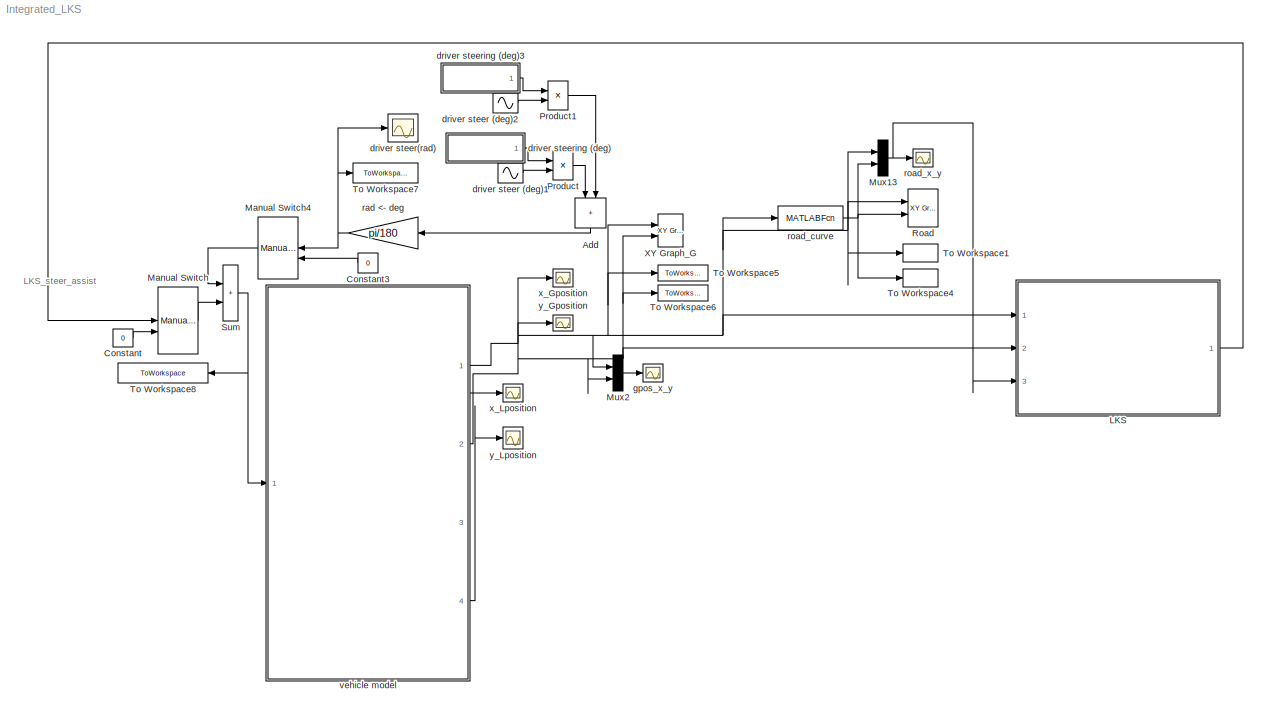
MODEL Integrated_LKS
KIND model
BLOCK [Sum] Add
  IconShape = rectangular
  NameLocation = left
  Ports = [2, 1]
  SID = 369
BLOCK [Constant] Constant
  SID = 16
  Value = 0
BLOCK [Constant] Constant3
  SID = 19
  Value = 0
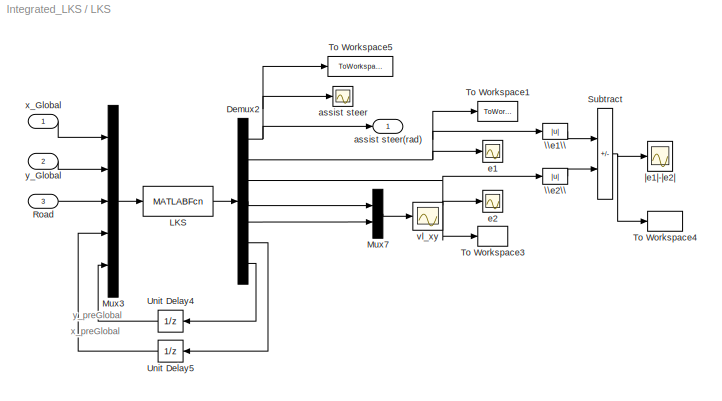
BLOCK [SubSystem] LKS
  Ports = [3, 1]
  RequestExecContextInheritance = off
  SID = 395
BLOCK [Demux] LKS/Demux2
  Outputs = 7
  Ports = [1, 7]
  SID = 333
BLOCK [MATLABFcn] LKS/LKS
  MATLABFcn = lks
  Ports = [1, 1]
  SID = 332
BLOCK [Mux] LKS/Mux3
  DisplayOption = bar
  Inputs = 5
  Ports = [5, 1]
  SID = 319
BLOCK [Mux] LKS/Mux7
  DisplayOption = bar
  Inputs = 2
  Ports = [2, 1]
  SID = 340
BLOCK [Inport] LKS/Road
  Port = 3
  SID = 398
BLOCK [Sum] LKS/Subtract
  IconShape = rectangular
  Inputs = +-
  Ports = [2, 1]
  SID = 405
BLOCK [ToWorkspace] LKS/To Workspace1
  MaxDataPoints = inf
  Ports = [1]
  SID = 466
  SampleTime = -1
  VariableName = e1
BLOCK [ToWorkspace] LKS/To Workspace3
  MaxDataPoints = inf
  Ports = [1]
  SID = 467
  SampleTime = -1
  VariableName = e2
BLOCK [ToWorkspace] LKS/To Workspace4
  MaxDataPoints = inf
  Ports = [1]
  SID = 468
  SampleTime = -1
  VariableName = e1_e2
BLOCK [ToWorkspace] LKS/To Workspace5
  MaxDataPoints = inf
  Ports = [1]
  SID = 465
  SampleTime = -1
  VariableName = assist_steer
BLOCK [UnitDelay] LKS/Unit Delay4
  HasFrameUpgradeWarning = on
  NameLocation = top
  SID = 344
  SampleTime = -1
BLOCK [UnitDelay] LKS/Unit Delay5
  HasFrameUpgradeWarning = on
  NameLocation = top
  SID = 345
  SampleTime = -1
BLOCK [Abs] LKS/\\e1\\
  SID = 406
  SaturateOnIntegerOverflow = off
BLOCK [Abs] LKS/\\e2\\
  SID = 408
  SaturateOnIntegerOverflow = off
BLOCK [Scope] LKS/assist steer
  Floating = off
  NumInputPorts = 1
  Ports = [1]
  SID = 348
  ScopeSpecificationString = Simulink.scopes.TimeScopeBlockCfg('CurrentConfiguration', extmgr.ConfigurationSet(extmgr.Configuration('Core','General UI',true),extmgr.Configuration('Core','Source UI',true),extmgr.Configuration('Sources','WiredSimulink',true,'DataLoggingVariableName','ScopeData6','DataLoggingSaveFormat','StructureWithTime','DataLoggingDecimation','1','DataLoggingDecimateData',true),extmgr.Configuration('Visuals'...<+1764ch>
BLOCK [Outport] LKS/assist steer(rad)
  SID = 399
BLOCK [Scope] LKS/e1
  Floating = off
  NumInputPorts = 1
  Ports = [1]
  SID = 337
  ScopeSpecificationString = Simulink.scopes.TimeScopeBlockCfg('CurrentConfiguration', extmgr.ConfigurationSet(extmgr.Configuration('Core','General UI',true),extmgr.Configuration('Core','Source UI',true),extmgr.Configuration('Sources','WiredSimulink',true,'DataLoggingVariableName','ScopeData2','DataLoggingSaveFormat','StructureWithTime','DataLoggingDecimation','1','DataLoggingDecimateData',true),extmgr.Configuration('Visuals'...<+1742ch>
BLOCK [Scope] LKS/e2
  Floating = off
  NumInputPorts = 1
  Ports = [1]
  SID = 338
  ScopeSpecificationString = Simulink.scopes.TimeScopeBlockCfg('CurrentConfiguration', extmgr.ConfigurationSet(extmgr.Configuration('Core','General UI',true),extmgr.Configuration('Core','Source UI',true),extmgr.Configuration('Sources','WiredSimulink',true,'DataLoggingVariableName','ScopeData3','DataLoggingSaveFormat','StructureWithTime','DataLoggingDecimation','1','DataLoggingDecimateData',true),extmgr.Configuration('Visuals'...<+1742ch>
BLOCK [Scope] LKS/vl_xy
  Floating = off
  NumInputPorts = 1
  Ports = [1]
  SID = 339
  ScopeSpecificationString = Simulink.scopes.TimeScopeBlockCfg('CurrentConfiguration', extmgr.ConfigurationSet(extmgr.Configuration('Core','General UI',true),extmgr.Configuration('Core','Source UI',true),extmgr.Configuration('Sources','WiredSimulink',true,'DataLoggingVariableName','ScopeData5','DataLoggingSaveFormat','StructureWithTime','DataLoggingDecimation','1','DataLoggingDecimateData',true),extmgr.Configuration('Visuals'...<+1764ch>
BLOCK [Inport] LKS/x_Global
  SID = 396
BLOCK [Inport] LKS/y_Global
  Port = 2
  SID = 397
BLOCK [Scope] LKS/|e1|-|e2|
  Floating = off
  NumInputPorts = 1
  Ports = [1]
  SID = 409
  ScopeSpecificationString = Simulink.scopes.TimeScopeBlockCfg('CurrentConfiguration', extmgr.ConfigurationSet(extmgr.Configuration('Core','General UI',true),extmgr.Configuration('Core','Source UI',true),extmgr.Configuration('Sources','WiredSimulink',true,'DataLoggingVariableName','ScopeData9','DataLoggingSaveFormat','StructureWithTime','DataLoggingLimitDataPoints',true,'DataLoggingDecimation','1','DataLoggingDecimateData',tr...<+1708ch>
BLOCK [ManualSwitch] Manual Switch
  SID = 25
BLOCK [ManualSwitch] Manual Switch4
  NameLocation = top
  SID = 29
BLOCK [Mux] Mux13
  DisplayOption = bar
  Inputs = 2
  Ports = [2, 1]
  SID = 325
BLOCK [Mux] Mux2
  DisplayOption = bar
  Inputs = 2
  Ports = [2, 1]
  SID = 494
BLOCK [Product] Product
  Ports = [2, 1]
  RndMeth = Zero
  SID = 352
BLOCK [Product] Product1
  Ports = [2, 1]
  RndMeth = Zero
  SID = 487
BLOCK [Reference] Road  REF=simulink/Sinks/XY Graph
  Ports = [2]
  RTWMemSecDataConstants = Inherit from model
  RTWMemSecDataInternal = Inherit from model
  RTWMemSecDataParameters = Inherit from model
  RTWMemSecFuncExecute = Inherit from model
  RTWMemSecFuncInitTerm = Inherit from model
  SID = 322
  SourceBlock = simulink/Sinks/XY Graph
  SourceProductBaseCode = SL
  SourceType = XY scope.
  st = 0
  xmax = 500
  xmin = 0
  ymax = 1
  ymin = -100
BLOCK [Sum] Sum
  IconShape = rectangular
  Inputs = |++
  Ports = [2, 1]
  SID = 41
  SaturateOnIntegerOverflow = on
BLOCK [ToWorkspace] To Workspace1
  MaxDataPoints = inf
  Ports = [1]
  SID = 457
  SampleTime = -1
  VariableName = Roadx
BLOCK [ToWorkspace] To Workspace4
  MaxDataPoints = inf
  Ports = [1]
  SID = 458
  SampleTime = -1
  VariableName = Roady
BLOCK [ToWorkspace] To Workspace5
  MaxDataPoints = inf
  Ports = [1]
  SID = 454
  SampleTime = -1
  VariableName = xgp_with
BLOCK [ToWorkspace] To Workspace6
  MaxDataPoints = inf
  Ports = [1]
  SID = 456
  SampleTime = -1
  VariableName = ygp_with
BLOCK [ToWorkspace] To Workspace7
  MaxDataPoints = inf
  Ports = [1]
  SID = 469
  SampleTime = -1
  VariableName = driver_steer
BLOCK [ToWorkspace] To Workspace8
  MaxDataPoints = inf
  NameLocation = top
  Ports = [1]
  SID = 470
  SampleTime = -1
  VariableName = command_steer
BLOCK [Reference] XY Graph_G  REF=simulink/Sinks/XY Graph
  Ports = [2]
  RTWMemSecDataConstants = Inherit from model
  RTWMemSecDataInternal = Inherit from model
  RTWMemSecDataParameters = Inherit from model
  RTWMemSecFuncExecute = Inherit from model
  RTWMemSecFuncInitTerm = Inherit from model
  SID = 327
  SourceBlock = simulink/Sinks/XY Graph
  SourceProductBaseCode = SL
  SourceType = XY scope.
  st = 0
  xmax = 500
  xmin = 0
  ymax = 1
  ymin = -100
BLOCK [Sin] driver steer (deg)1
  Amplitude = 0.8
  Frequency = 0.34907
  Phase = 0.34898
  Ports = [0, 1]
  SID = 368
  SampleTime = 0
BLOCK [Sin] driver steer (deg)2
  Amplitude = 0.8
  Frequency = 0.165347
  Phase = 2.64
  Ports = [0, 1]
  SID = 482
  SampleTime = 0
BLOCK [Scope] driver steer(rad)
  Floating = off
  NumInputPorts = 1
  Ports = [1]
  SID = 180
  ScopeSpecificationString = Simulink.scopes.TimeScopeBlockCfg('CurrentConfiguration', extmgr.ConfigurationSet(extmgr.Configuration('Core','General UI',true),extmgr.Configuration('Core','Source UI',true),extmgr.Configuration('Sources','WiredSimulink',true,'DataLoggingVariableName','ScopeData10','DataLoggingSaveFormat','StructureWithTime','DataLoggingDecimation','1','DataLoggingDecimateData',true),extmgr.Configuration('Visuals...<+1768ch>
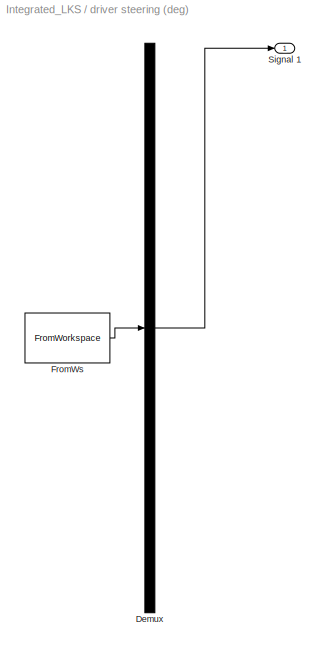
BLOCK [SubSystem] driver steering (deg)
  ClipboardFcn = sigbuilder_block('clipboard');
  CloseFcn = sigbuilder_block('close');
  ContinueFcn = sigbuilder_block('continue')
  CopyFcn = sigbuilder_block('copy');
  DeleteFcn = sigbuilder_block('delete');
  LoadFcn = sigbuilder_block('load');
  MaskHideContents = on
  ModelCloseFcn = sigbuilder_block('modelClose');
  NameChangeFcn = sigbuilder_block('namechange');
  NameLocation = top
  OpenFcn = sigbuilder_block('open',[-717 159.75 558.75 274.5 ]);
  PauseFcn = sigbuilder_block('pause')
  Ports = [0, 1]
  PreSaveFcn = sigbuilder_block('preSave');
  RequestExecContextInheritance = off
  SID = 364
  StartFcn = sigbuilder_block('start');
  StopFcn = sigbuilder_block('stop');
  Tag = STV Subsys
BLOCK [Demux] driver steering (deg)/Demux
  DisplayOption = none
  Outputs = 1
  Ports = [1, 1]
  SID = 365
  Tag = STV Demux
BLOCK [FromWorkspace] driver steering (deg)/FromWs
  SID = 366
  SigBuilderData = DataTag0
  Tag = STV FromWs
  VariableName = tuvar
  VnvData = DataTag1
BLOCK [Outport] driver steering (deg)/Signal 1
  SID = 367
  Tag = STV Outport
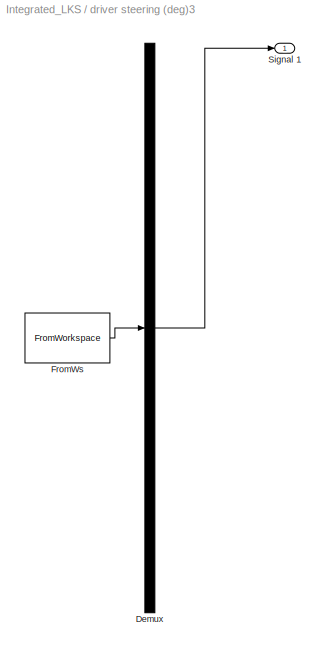
BLOCK [SubSystem] driver steering (deg)3
  ClipboardFcn = sigbuilder_block('clipboard');
  CloseFcn = sigbuilder_block('close');
  ContinueFcn = sigbuilder_block('continue')
  CopyFcn = sigbuilder_block('copy');
  DeleteFcn = sigbuilder_block('delete');
  LoadFcn = sigbuilder_block('load');
  MaskHideContents = on
  ModelCloseFcn = sigbuilder_block('modelClose');
  NameChangeFcn = sigbuilder_block('namechange');
  NameLocation = top
  OpenFcn = sigbuilder_block('open',[-723.75 76.5 558.75 274.5 ]);
  PauseFcn = sigbuilder_block('pause')
  Ports = [0, 1]
  PreSaveFcn = sigbuilder_block('preSave');
  RequestExecContextInheritance = off
  SID = 483
  StartFcn = sigbuilder_block('start');
  StopFcn = sigbuilder_block('stop');
  Tag = STV Subsys
BLOCK [Demux] driver steering (deg)3/Demux
  DisplayOption = none
  Outputs = 1
  Ports = [1, 1]
  SID = 484
  Tag = STV Demux
BLOCK [FromWorkspace] driver steering (deg)3/FromWs
  SID = 485
  SigBuilderData = DataTag2
  Tag = STV FromWs
  VariableName = tuvar
  VnvData = DataTag3
BLOCK [Outport] driver steering (deg)3/Signal 1
  SID = 486
  Tag = STV Outport
BLOCK [Scope] gpos_x_y
  Floating = off
  NumInputPorts = 1
  Ports = [1]
  SID = 495
  ScopeSpecificationString = Simulink.scopes.TimeScopeBlockCfg('CurrentConfiguration', extmgr.ConfigurationSet(extmgr.Configuration('Core','General UI',true),extmgr.Configuration('Core','Source UI',true),extmgr.Configuration('Sources','WiredSimulink',true,'DataLoggingVariableName','ScopeData22','DataLoggingSaveFormat','StructureWithTime','DataLoggingDecimation','1','DataLoggingDecimateData',true),extmgr.Configuration('Visuals...<+1778ch>
BLOCK [Gain] rad <- deg
  Gain = pi/180
  NameLocation = top
  OutDataTypeStr = Inherit: Same as input
  ParamDataTypeStr = Inherit: Same as input
  SID = 49
  SaturateOnIntegerOverflow = on
BLOCK [MATLABFcn] road_curve
  MATLABFcn = road_curve
  Ports = [1, 1]
  SID = 321
BLOCK [Scope] road_x_y
  Floating = off
  NumInputPorts = 1
  Ports = [1]
  SID = 326
  ScopeSpecificationString = Simulink.scopes.TimeScopeBlockCfg('CurrentConfiguration', extmgr.ConfigurationSet(extmgr.Configuration('Core','General UI',true),extmgr.Configuration('Core','Source UI',true),extmgr.Configuration('Sources','WiredSimulink',true,'DataLoggingSaveFormat','StructureWithTime','DataLoggingDecimation','1','DataLoggingDecimateData',true),extmgr.Configuration('Visuals','Time Domain',true,'SerializedDisplays...<+1734ch>
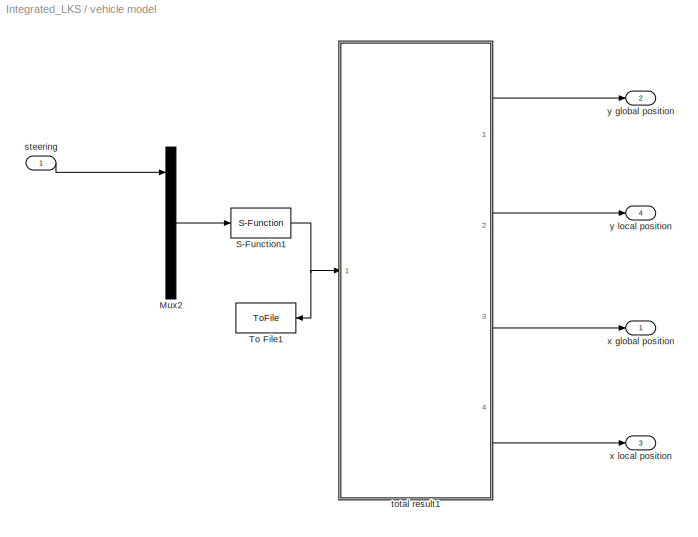
BLOCK [SubSystem] vehicle model
  Ports = [1, 4]
  RequestExecContextInheritance = off
  SID = 118
BLOCK [Mux] vehicle model/Mux2
  DisplayOption = bar
  Inputs = 5
  Ports = [5, 1]
  SID = 125
BLOCK [S-Function] vehicle model/S-Function1
  EnableBusSupport = off
  FunctionName = csfn_7dof
  Ports = [1, 1]
  SFcnIsStateOwnerBlock = off
  SFunctionDeploymentMode = off
  SID = 128
BLOCK [ToFile] vehicle model/To File1
  Filename = steer.mat
  MatrixName = steer
  NameLocation = top
  Ports = [1]
  SID = 129
BLOCK [Inport] vehicle model/steering
  SID = 119
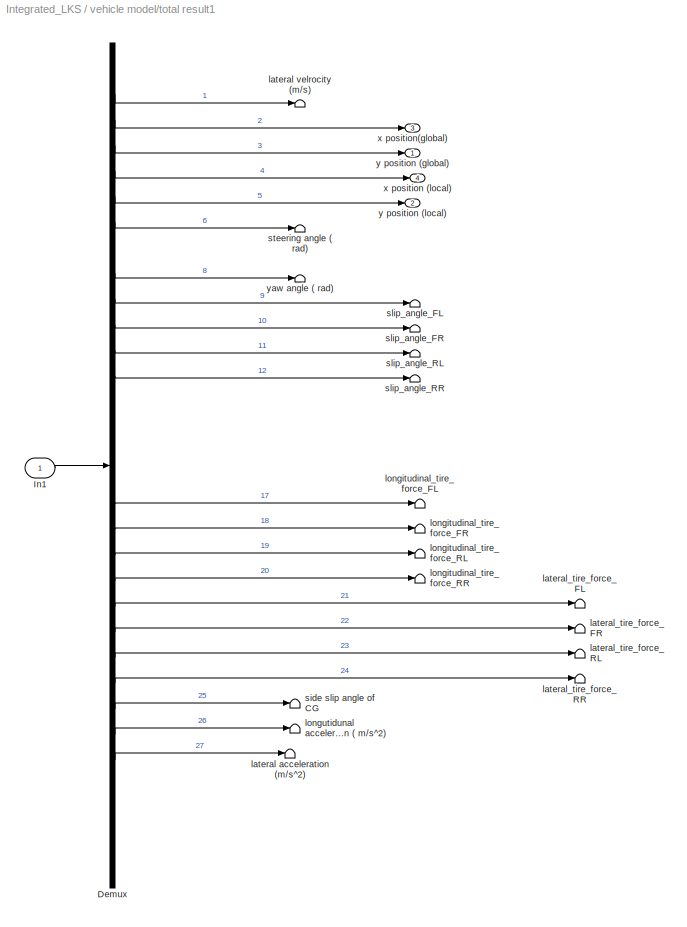
BLOCK [SubSystem] vehicle model/total result1
  Ports = [1, 4]
  RequestExecContextInheritance = off
  SID = 130
BLOCK [Demux] vehicle model/total result1/Demux
  DisplayOption = none
  Outputs = 32
  Ports = [1, 32]
  SID = 132
BLOCK [Inport] vehicle model/total result1/In1
  NameLocation = top
  SID = 131
BLOCK [Terminator] vehicle model/total result1/lateral acceleration (m//s^2)
  SID = 133
BLOCK [Terminator] vehicle model/total result1/lateral velrocity (m//s)
  SID = 134
BLOCK [Terminator] vehicle model/total result1/lateral_tire_force_FL
  SID = 135
BLOCK [Terminator] vehicle model/total result1/lateral_tire_force_FR
  SID = 136
BLOCK [Terminator] vehicle model/total result1/lateral_tire_force_RL
  SID = 137
BLOCK [Terminator] vehicle model/total result1/lateral_tire_force_RR
  SID = 138
BLOCK [Terminator] vehicle model/total result1/longitudinal_tire_force_FL
  SID = 139
BLOCK [Terminator] vehicle model/total result1/longitudinal_tire_force_FR
  SID = 140
BLOCK [Terminator] vehicle model/total result1/longitudinal_tire_force_RL
  SID = 141
BLOCK [Terminator] vehicle model/total result1/longitudinal_tire_force_RR
  SID = 142
BLOCK [Terminator] vehicle model/total result1/longutidunal acceleration ( m//s^2)
  SID = 143
BLOCK [Terminator] vehicle model/total result1/side slip angle of CG
  SID = 144
BLOCK [Terminator] vehicle model/total result1/slip_angle_FL
  SID = 300
BLOCK [Terminator] vehicle model/total result1/slip_angle_FR
  SID = 301
BLOCK [Terminator] vehicle model/total result1/slip_angle_RL
  SID = 302
BLOCK [Terminator] vehicle model/total result1/slip_angle_RR
  SID = 303
BLOCK [Terminator] vehicle model/total result1/steering angle ( rad)
  SID = 145
BLOCK [Outport] vehicle model/total result1/x position (local)
  Port = 4
  SID = 213
BLOCK [Outport] vehicle model/total result1/x position(global)
  Port = 3
  SID = 212
BLOCK [Outport] vehicle model/total result1/y position (global)
  SID = 160
BLOCK [Outport] vehicle model/total result1/y position (local)
  Port = 2
  SID = 211
BLOCK [Terminator] vehicle model/total result1/yaw angle ( rad)
  SID = 149
BLOCK [Outport] vehicle model/x global position
  SID = 304
BLOCK [Outport] vehicle model/x local position
  Port = 3
  SID = 306
BLOCK [Outport] vehicle model/y global position
  Port = 2
  SID = 305
BLOCK [Outport] vehicle model/y local position
  Port = 4
  SID = 307
BLOCK [Scope] x_Gposition
  Floating = off
  NumInputPorts = 1
  Ports = [1]
  SID = 221
  ScopeSpecificationString = Simulink.scopes.TimeScopeBlockCfg('CurrentConfiguration', extmgr.ConfigurationSet(extmgr.Configuration('Core','General UI',true),extmgr.Configuration('Core','Source UI',true),extmgr.Configuration('Sources','WiredSimulink',true,'DataLoggingVariableName','ScopeData16','DataLoggingSaveFormat','StructureWithTime','DataLoggingDecimation','1','DataLoggingDecimateData',true),extmgr.Configuration('Visuals...<+1756ch>
BLOCK [Scope] x_Lposition
  Floating = off
  NumInputPorts = 1
  Ports = [1]
  SID = 223
  ScopeSpecificationString = Simulink.scopes.TimeScopeBlockCfg('CurrentConfiguration', extmgr.ConfigurationSet(extmgr.Configuration('Core','General UI',true),extmgr.Configuration('Core','Source UI',true),extmgr.Configuration('Sources','WiredSimulink',true,'DataLoggingVariableName','ScopeData18','DataLoggingSaveFormat','StructureWithTime','DataLoggingDecimation','1','DataLoggingDecimateData',true),extmgr.Configuration('Visuals...<+1756ch>
BLOCK [Scope] y_Gposition
  Floating = off
  NumInputPorts = 1
  Ports = [1]
  SID = 174
  ScopeSpecificationString = Simulink.scopes.TimeScopeBlockCfg('CurrentConfiguration', extmgr.ConfigurationSet(extmgr.Configuration('Core','General UI',true),extmgr.Configuration('Core','Source UI',true),extmgr.Configuration('Sources','WiredSimulink',true,'DataLoggingVariableName','ScopeData14','DataLoggingSaveFormat','StructureWithTime','DataLoggingDecimation','1','DataLoggingDecimateData',true),extmgr.Configuration('Visuals...<+1758ch>
BLOCK [Scope] y_Lposition
  Floating = off
  NumInputPorts = 1
  Ports = [1]
  SID = 222
  ScopeSpecificationString = Simulink.scopes.TimeScopeBlockCfg('CurrentConfiguration', extmgr.ConfigurationSet(extmgr.Configuration('Core','General UI',true),extmgr.Configuration('Core','Source UI',true),extmgr.Configuration('Sources','WiredSimulink',true,'DataLoggingVariableName','ScopeData17','DataLoggingSaveFormat','StructureWithTime','DataLoggingDecimation','1','DataLoggingDecimateData',true),extmgr.Configuration('Visuals...<+1742ch>
ANNOTATION (root): LKS_steer_assist
ANNOTATION LKS: x_preGlobal
ANNOTATION LKS: y_preGlobal
LINE Add:1 -> rad <- deg:1
LINE Constant3:1 -> Manual Switch4:2
LINE Constant:1 -> Manual Switch:2
NET LKS/Demux2:1 -> LKS/To Workspace5:1, LKS/assist steer(rad):1, LKS/assist steer:1
NET LKS/Demux2:2 -> LKS/To Workspace1:1, LKS/\\e1\\:1, LKS/e1:1
NET LKS/Demux2:3 -> LKS/To Workspace3:1, LKS/\\e2\\:1, LKS/e2:1
LINE LKS/Demux2:4 -> LKS/Mux7:1
LINE LKS/Demux2:5 -> LKS/Mux7:2
LINE LKS/Demux2:6 -> LKS/Unit Delay5:1
LINE LKS/Demux2:7 -> LKS/Unit Delay4:1
LINE LKS/LKS:1 -> LKS/Demux2:1
LINE LKS/Mux3:1 -> LKS/LKS:1
LINE LKS/Mux7:1 -> LKS/vl_xy:1
LINE LKS/Road:1 -> LKS/Mux3:3
NET LKS/Subtract:1 -> LKS/To Workspace4:1, LKS/|e1|-|e2|:1
LINE LKS/Unit Delay4:1 -> LKS/Mux3:5
LINE LKS/Unit Delay5:1 -> LKS/Mux3:4
LINE LKS/\\e1\\:1 -> LKS/Subtract:1
LINE LKS/\\e2\\:1 -> LKS/Subtract:2
LINE LKS/x_Global:1 -> LKS/Mux3:1
LINE LKS/y_Global:1 -> LKS/Mux3:2
LINE LKS:1 -> Manual Switch:1
LINE Manual Switch4:1 -> Sum:1
LINE Manual Switch:1 -> Sum:2
NET Mux13:1 -> LKS:3, road_x_y:1
LINE Mux2:1 -> gpos_x_y:1
LINE Product1:1 -> Add:2
LINE Product:1 -> Add:1
NET Sum:1 -> To Workspace8:1, vehicle model:1
LINE driver steer (deg)1:1 -> Product:2
LINE driver steer (deg)2:1 -> Product1:2
LINE driver steering (deg)/Demux:1 -> driver steering (deg)/Signal 1:1
LINE driver steering (deg)/FromWs:1 -> driver steering (deg)/Demux:1
LINE driver steering (deg)3/Demux:1 -> driver steering (deg)3/Signal 1:1
LINE driver steering (deg)3/FromWs:1 -> driver steering (deg)3/Demux:1
LINE driver steering (deg)3:1 -> Product1:1
LINE driver steering (deg):1 -> Product:1
NET rad <- deg:1 -> Manual Switch4:1, To Workspace7:1, driver steer(rad):1
NET road_curve:1 -> Mux13:2, Road:2, To Workspace4:1
LINE vehicle model/Mux2:1 -> vehicle model/S-Function1:1
NET vehicle model/S-Function1:1 -> vehicle model/To File1:1, vehicle model/total result1:1
LINE vehicle model/steering:1 -> vehicle model/Mux2:1
LINE vehicle model/total result1/Demux:10 -> vehicle model/total result1/slip_angle_FL:1
LINE vehicle model/total result1/Demux:11 -> vehicle model/total result1/slip_angle_FR:1
LINE vehicle model/total result1/Demux:12 -> vehicle model/total result1/slip_angle_RL:1
LINE vehicle model/total result1/Demux:13 -> vehicle model/total result1/slip_angle_RR:1
LINE vehicle model/total result1/Demux:18 -> vehicle model/total result1/longitudinal_tire_force_FL:1
LINE vehicle model/total result1/Demux:19 -> vehicle model/total result1/longitudinal_tire_force_FR:1
LINE vehicle model/total result1/Demux:2 -> vehicle model/total result1/lateral velrocity (m//s):1
LINE vehicle model/total result1/Demux:20 -> vehicle model/total result1/longitudinal_tire_force_RL:1
LINE vehicle model/total result1/Demux:21 -> vehicle model/total result1/longitudinal_tire_force_RR:1
LINE vehicle model/total result1/Demux:22 -> vehicle model/total result1/lateral_tire_force_FL:1
LINE vehicle model/total result1/Demux:23 -> vehicle model/total result1/lateral_tire_force_FR:1
LINE vehicle model/total result1/Demux:24 -> vehicle model/total result1/lateral_tire_force_RL:1
LINE vehicle model/total result1/Demux:25 -> vehicle model/total result1/lateral_tire_force_RR:1
LINE vehicle model/total result1/Demux:26 -> vehicle model/total result1/side slip angle of CG:1
LINE vehicle model/total result1/Demux:27 -> vehicle model/total result1/longutidunal acceleration ( m//s^2):1
LINE vehicle model/total result1/Demux:28 -> vehicle model/total result1/lateral acceleration (m//s^2):1
LINE vehicle model/total result1/Demux:3 -> vehicle model/total result1/x position(global):1
LINE vehicle model/total result1/Demux:4 -> vehicle model/total result1/y position (global):1
LINE vehicle model/total result1/Demux:5 -> vehicle model/total result1/x position (local):1
LINE vehicle model/total result1/Demux:6 -> vehicle model/total result1/y position (local):1
LINE vehicle model/total result1/Demux:7 -> vehicle model/total result1/steering angle ( rad):1
LINE vehicle model/total result1/Demux:9 -> vehicle model/total result1/yaw angle ( rad):1
LINE vehicle model/total result1/In1:1 -> vehicle model/total result1/Demux:1
LINE vehicle model/total result1:1 -> vehicle model/y global position:1
LINE vehicle model/total result1:2 -> vehicle model/y local position:1
LINE vehicle model/total result1:3 -> vehicle model/x global position:1
LINE vehicle model/total result1:4 -> vehicle model/x local position:1
NET vehicle model:1 -> LKS:1, Mux13:1, Mux2:1, Road:1, To Workspace1:1, To Workspace5:1, XY Graph_G:1, road_curve:1, x_Gposition:1
NET vehicle model:2 -> LKS:2, Mux2:2, To Workspace6:1, XY Graph_G:2, y_Gposition:1
LINE vehicle model:3 -> x_Lposition:1
LINE vehicle model:4 -> y_Lposition:1
note: NET lines group one-source signal fan-out (src -> all destinations, sorted); 1:1 wires keep LINE
